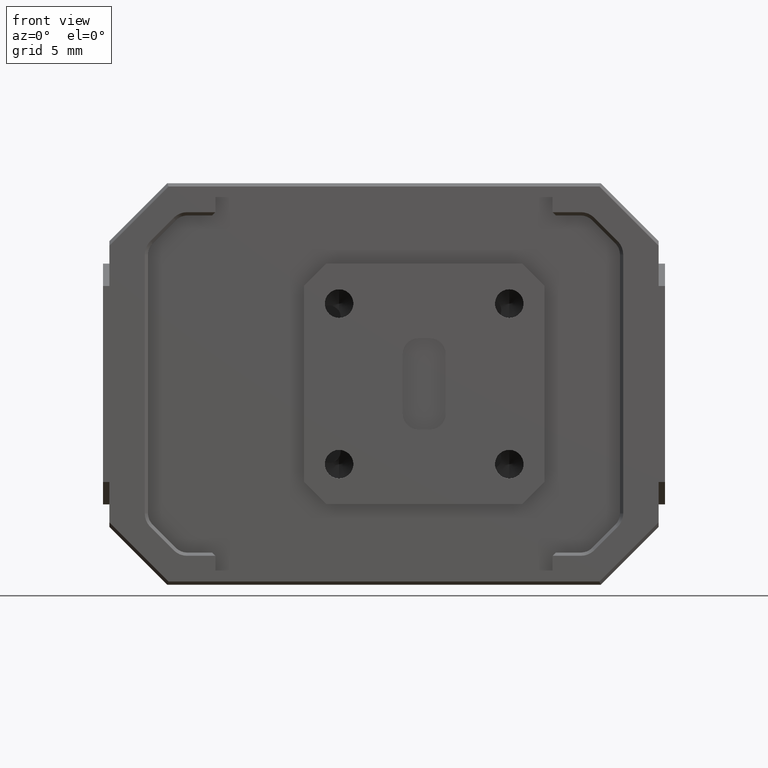
[diagram: clean part render]
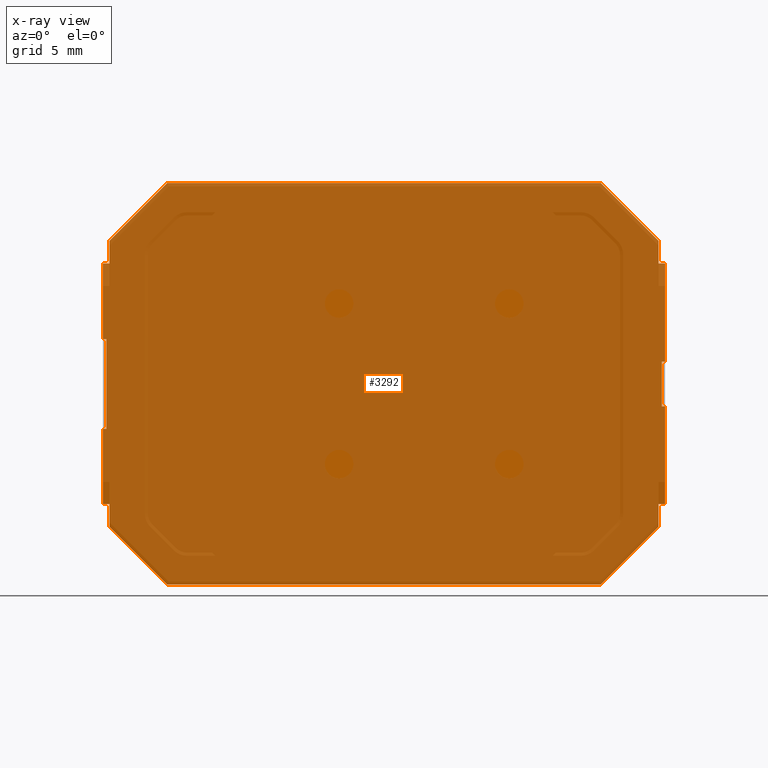
[diagram: x-ray — body ghosted, one internal face saturated and labeled with its STEP entity id]
A machine part, front view, then the same camera in x-ray: the body is ghosted and one INTERNAL B-rep face — a face not visible from any outside direction — is saturated and labeled: STEP entity #3292.
In plain terms, the highlighted planar face has unit normal (0, 1, 0).
Its self-contained STEP definition (entity closure, byte-faithful):
#88 = LINE ( 'NONE', #1535, #2466 ) ;
#144 = VERTEX_POINT ( 'NONE', #9385 ) ;
#421 = CARTESIAN_POINT ( 'NONE',  ( 0.000000000000000000, 0.000000000000000000, 0.000000000000000000 ) ) ;
#543 = VERTEX_POINT ( 'NONE', #2699 ) ;
#607 = EDGE_CURVE ( 'NONE', #2891, #1020, #5852, .T. ) ;
#648 = ORIENTED_EDGE ( 'NONE', *, *, #22525, .F. ) ;
#935 = CARTESIAN_POINT ( 'NONE',  ( 0.8750000000000007772, 0.000000000000000000, 0.6250000000000012212 ) ) ;
#1020 = VERTEX_POINT ( 'NONE', #16506 ) ;
#1477 = EDGE_CURVE ( 'NONE', #2705, #19434, #1617, .T. ) ;
#1502 = VECTOR ( 'NONE', #12886, 39.37007874015748143 ) ;
#1535 = CARTESIAN_POINT ( 'NONE',  ( 0.8750000000000007772, -0.000000000000000000, -0.6250000000000006661 ) ) ;
#1571 = DIRECTION ( 'NONE',  ( -1.000000000000000000, 0.000000000000000000, 0.000000000000000000 ) ) ;
#1617 = LINE ( 'NONE', #22690, #21747 ) ;
#1821 = EDGE_CURVE ( 'NONE', #8327, #144, #25546, .T. ) ;
#1888 = DIRECTION ( 'NONE',  ( 0.7071067811865460184, -0.000000000000000000, 0.7071067811865489050 ) ) ;
#1915 = LINE ( 'NONE', #27135, #20199 ) ;
#2265 = EDGE_CURVE ( 'NONE', #19488, #2705, #10805, .T. ) ;
#2448 = CARTESIAN_POINT ( 'NONE',  ( 0.8550000000000013145, -0.000000000000000000, -0.4449999999999986744 ) ) ;
#2466 = VECTOR ( 'NONE', #6603, 39.37007874015748143 ) ;
#2600 = CARTESIAN_POINT ( 'NONE',  ( 0.000000000000000000, 0.000000000000000000, 0.1400000000000005962 ) ) ;
#2640 = FACE_OUTER_BOUND ( 'NONE', #15104, .T. ) ;
#2699 = CARTESIAN_POINT ( 'NONE',  ( 0.6750000000000004885, -0.000000000000000000, -0.6250000000000006661 ) ) ;
#2705 = VERTEX_POINT ( 'NONE', #3646 ) ;
#2791 = CARTESIAN_POINT ( 'NONE',  ( 0.000000000000000000, 0.000000000000000000, -0.3750000000000008327 ) ) ;
#2885 = VECTOR ( 'NONE', #26090, 39.37007874015748143 ) ;
#2891 = VERTEX_POINT ( 'NONE', #18754 ) ;
#2985 = CARTESIAN_POINT ( 'NONE',  ( 0.8750000000000013323, -1.365923996832131609E-16, -0.3750000000000008327 ) ) ;
#3065 = VERTEX_POINT ( 'NONE', #16248 ) ;
#3188 = CARTESIAN_POINT ( 'NONE',  ( 0.8750000000000007772, 0.000000000000000000, 0.6250000000000012212 ) ) ;
#3220 = EDGE_CURVE ( 'NONE', #18710, #24517, #4307, .T. ) ;
#3292 = ADVANCED_FACE ( 'NONE', ( #2640 ), #19415, .F. ) ;
#3432 = VECTOR ( 'NONE', #9208, 39.37007874015748854 ) ;
#3646 = CARTESIAN_POINT ( 'NONE',  ( 0.8650000000000034328, 0.000000000000000000, -0.06999999999999978462 ) ) ;
#3680 = DIRECTION ( 'NONE',  ( -0.000000000000000000, -0.000000000000000000, 1.000000000000000000 ) ) ;
#3802 = CARTESIAN_POINT ( 'NONE',  ( -0.8550000000000013145, 0.000000000000000000, 0.000000000000000000 ) ) ;
#3810 = ORIENTED_EDGE ( 'NONE', *, *, #15761, .T. ) ;
#3815 = LINE ( 'NONE', #14905, #15770 ) ;
#4073 = CARTESIAN_POINT ( 'NONE',  ( -0.6749999999999999334, 0.000000000000000000, -0.6250000000000006661 ) ) ;
#4278 = VECTOR ( 'NONE', #21367, 39.37007874015748143 ) ;
#4307 = LINE ( 'NONE', #23312, #26771 ) ;
#4432 = CARTESIAN_POINT ( 'NONE',  ( 0.8550000000000013145, 0.000000000000000000, 0.000000000000000000 ) ) ;
#4733 = ORIENTED_EDGE ( 'NONE', *, *, #9231, .T. ) ;
#5176 = CARTESIAN_POINT ( 'NONE',  ( 0.8750000000000007772, 0.000000000000000000, 0.07000000000000046463 ) ) ;
#5228 = DIRECTION ( 'NONE',  ( 0.000000000000000000, 0.000000000000000000, 1.000000000000000000 ) ) ;
#5290 = CARTESIAN_POINT ( 'NONE',  ( 0.8550000000000013145, 0.000000000000000000, 0.4450000000000002842 ) ) ;
#5512 = AXIS2_PLACEMENT_3D ( 'NONE', #421, #11094, #17332 ) ;
#5523 = LINE ( 'NONE', #3188, #26840 ) ;
#5852 = LINE ( 'NONE', #8070, #25292 ) ;
#5963 = DIRECTION ( 'NONE',  ( -0.7071067811865467956, -0.000000000000000000, -0.7071067811865482389 ) ) ;
#6038 = LINE ( 'NONE', #16313, #17130 ) ;
#6128 = VERTEX_POINT ( 'NONE', #11201 ) ;
#6556 = ORIENTED_EDGE ( 'NONE', *, *, #22885, .T. ) ;
#6603 = DIRECTION ( 'NONE',  ( 1.000000000000000000, 0.000000000000000000, 0.000000000000000000 ) ) ;
#6723 = VERTEX_POINT ( 'NONE', #4073 ) ;
#6729 = ORIENTED_EDGE ( 'NONE', *, *, #2265, .T. ) ;
#6750 = ORIENTED_EDGE ( 'NONE', *, *, #24438, .F. ) ;
#6984 = DIRECTION ( 'NONE',  ( -1.000000000000000000, 0.000000000000000000, 0.000000000000000000 ) ) ;
#7093 = VECTOR ( 'NONE', #1888, 39.37007874015748854 ) ;
#7167 = DIRECTION ( 'NONE',  ( 1.000000000000000000, 0.000000000000000000, 0.000000000000000000 ) ) ;
#7346 = VERTEX_POINT ( 'NONE', #10949 ) ;
#7546 = VERTEX_POINT ( 'NONE', #8286 ) ;
#7676 = ORIENTED_EDGE ( 'NONE', *, *, #15926, .F. ) ;
#7702 = VERTEX_POINT ( 'NONE', #2448 ) ;
#7742 = VERTEX_POINT ( 'NONE', #21434 ) ;
#8070 = CARTESIAN_POINT ( 'NONE',  ( 0.000000000000000000, 0.000000000000000000, -0.1399999999999999023 ) ) ;
#8157 = CARTESIAN_POINT ( 'NONE',  ( 0.8650000000000034328, 0.000000000000000000, 0.07000000000000046463 ) ) ;
#8276 = DIRECTION ( 'NONE',  ( 0.000000000000000000, 0.000000000000000000, 1.000000000000000000 ) ) ;
#8286 = CARTESIAN_POINT ( 'NONE',  ( -0.8650000000000037659, 0.000000000000000000, 0.1400000000000005962 ) ) ;
#8327 = VERTEX_POINT ( 'NONE', #8486 ) ;
#8486 = CARTESIAN_POINT ( 'NONE',  ( -0.8750000000000013323, -1.365923996832131609E-16, 0.3750000000000005551 ) ) ;
#8689 = EDGE_CURVE ( 'NONE', #6723, #543, #88, .T. ) ;
#8917 = CARTESIAN_POINT ( 'NONE',  ( 0.6749999999999999334, 0.000000000000000000, 0.6250000000000012212 ) ) ;
#8924 = ORIENTED_EDGE ( 'NONE', *, *, #23966, .F. ) ;
#9208 = DIRECTION ( 'NONE',  ( 0.7071067811865494601, -0.000000000000000000, -0.7071067811865455743 ) ) ;
#9231 = EDGE_CURVE ( 'NONE', #7546, #2891, #3815, .T. ) ;
#9385 = CARTESIAN_POINT ( 'NONE',  ( -0.8750000000000009992, 0.000000000000000000, 0.1400000000000005962 ) ) ;
#9386 = DIRECTION ( 'NONE',  ( -1.000000000000000000, 0.000000000000000000, 0.000000000000000000 ) ) ;
#10361 = LINE ( 'NONE', #14945, #16588 ) ;
#10805 = LINE ( 'NONE', #25508, #1502 ) ;
#10881 = ORIENTED_EDGE ( 'NONE', *, *, #15185, .F. ) ;
#10949 = CARTESIAN_POINT ( 'NONE',  ( -0.8750000000000013323, -1.365923996832131609E-16, -0.3750000000000008327 ) ) ;
#10954 = LINE ( 'NONE', #4432, #27238 ) ;
#11094 = DIRECTION ( 'NONE',  ( 0.000000000000000000, 1.000000000000000000, 0.000000000000000000 ) ) ;
#11120 = CARTESIAN_POINT ( 'NONE',  ( -0.8750000000000009992, 0.000000000000000000, 0.6250000000000012212 ) ) ;
#11201 = CARTESIAN_POINT ( 'NONE',  ( 0.8550000000000013145, -1.365923996832131609E-16, -0.3750000000000008327 ) ) ;
#11433 = LINE ( 'NONE', #20010, #3432 ) ;
#11772 = VECTOR ( 'NONE', #9386, 39.37007874015748143 ) ;
#11809 = VECTOR ( 'NONE', #8276, 39.37007874015748143 ) ;
#11970 = CARTESIAN_POINT ( 'NONE',  ( 0.8750000000000007772, 0.000000000000000000, 0.4250000000000008771 ) ) ;
#12427 = LINE ( 'NONE', #20878, #7093 ) ;
#12727 = EDGE_CURVE ( 'NONE', #543, #7702, #12427, .T. ) ;
#12819 = DIRECTION ( 'NONE',  ( 0.000000000000000000, 0.000000000000000000, -1.000000000000000000 ) ) ;
#12842 = ORIENTED_EDGE ( 'NONE', *, *, #19794, .T. ) ;
#12886 = DIRECTION ( 'NONE',  ( -1.000000000000000000, 0.000000000000000000, 0.000000000000000000 ) ) ;
#13123 = LINE ( 'NONE', #2600, #11772 ) ;
#13204 = CARTESIAN_POINT ( 'NONE',  ( -0.8550000000000013145, 0.000000000000000000, 0.000000000000000000 ) ) ;
#13345 = ORIENTED_EDGE ( 'NONE', *, *, #16324, .T. ) ;
#13346 = ORIENTED_EDGE ( 'NONE', *, *, #3220, .T. ) ;
#13415 = CARTESIAN_POINT ( 'NONE',  ( -0.000000000000000000, 0.000000000000000000, -0.3750000000000008327 ) ) ;
#13593 = ORIENTED_EDGE ( 'NONE', *, *, #22547, .F. ) ;
#13778 = LINE ( 'NONE', #11970, #21043 ) ;
#13785 = ORIENTED_EDGE ( 'NONE', *, *, #20196, .F. ) ;
#14173 = VERTEX_POINT ( 'NONE', #5290 ) ;
#14378 = CARTESIAN_POINT ( 'NONE',  ( 0.8750000000000007772, 0.000000000000000000, 0.6250000000000012212 ) ) ;
#14881 = EDGE_CURVE ( 'NONE', #15386, #20326, #10361, .T. ) ;
#14905 = CARTESIAN_POINT ( 'NONE',  ( -0.8650000000000009903, 0.000000000000000000, 0.1400000000000005962 ) ) ;
#14945 = CARTESIAN_POINT ( 'NONE',  ( 0.000000000000000000, 0.000000000000000000, 0.3750000000000005551 ) ) ;
#15036 = EDGE_CURVE ( 'NONE', #14173, #18646, #13778, .T. ) ;
#15104 = EDGE_LOOP ( 'NONE', ( #21998, #7676, #21605, #22390, #8924, #15947, #3810, #13346, #13785, #19273, #24622, #6750, #4733, #16302, #13345, #6556, #10881, #24035, #23796, #22540, #648, #13593, #12842, #6729 ) ) ;
#15185 = EDGE_CURVE ( 'NONE', #7742, #3065, #17358, .T. ) ;
#15386 = VERTEX_POINT ( 'NONE', #21939 ) ;
#15761 = EDGE_CURVE ( 'NONE', #18646, #18710, #5523, .T. ) ;
#15770 = VECTOR ( 'NONE', #12819, 39.37007874015748143 ) ;
#15926 = EDGE_CURVE ( 'NONE', #22100, #19434, #1915, .T. ) ;
#15947 = ORIENTED_EDGE ( 'NONE', *, *, #15036, .T. ) ;
#16248 = CARTESIAN_POINT ( 'NONE',  ( -0.8550000000000013145, -1.365923996832131609E-16, -0.3750000000000008327 ) ) ;
#16302 = ORIENTED_EDGE ( 'NONE', *, *, #607, .T. ) ;
#16313 = CARTESIAN_POINT ( 'NONE',  ( -0.8750000000000009992, 0.000000000000000000, 0.6250000000000012212 ) ) ;
#16324 = EDGE_CURVE ( 'NONE', #1020, #7346, #6038, .T. ) ;
#16506 = CARTESIAN_POINT ( 'NONE',  ( -0.8750000000000009992, 0.000000000000000000, -0.1399999999999999023 ) ) ;
#16588 = VECTOR ( 'NONE', #25615, 39.37007874015748143 ) ;
#16661 = VECTOR ( 'NONE', #5228, 39.37007874015748143 ) ;
#17030 = CARTESIAN_POINT ( 'NONE',  ( 0.8750000000000007772, -0.000000000000000000, -0.06999999999999978462 ) ) ;
#17130 = VECTOR ( 'NONE', #18388, 39.37007874015748143 ) ;
#17196 = DIRECTION ( 'NONE',  ( 0.000000000000000000, 0.000000000000000000, -1.000000000000000000 ) ) ;
#17332 = DIRECTION ( 'NONE',  ( -0.000000000000000000, 0.000000000000000000, -1.000000000000000000 ) ) ;
#17358 = LINE ( 'NONE', #13204, #26793 ) ;
#17428 = VERTEX_POINT ( 'NONE', #19581 ) ;
#17482 = DIRECTION ( 'NONE',  ( 0.000000000000000000, 0.000000000000000000, -1.000000000000000000 ) ) ;
#17526 = LINE ( 'NONE', #25992, #20693 ) ;
#17759 = LINE ( 'NONE', #2791, #2885 ) ;
#18388 = DIRECTION ( 'NONE',  ( 0.000000000000000000, 0.000000000000000000, -1.000000000000000000 ) ) ;
#18646 = VERTEX_POINT ( 'NONE', #8917 ) ;
#18710 = VERTEX_POINT ( 'NONE', #21951 ) ;
#18754 = CARTESIAN_POINT ( 'NONE',  ( -0.8650000000000037659, 0.000000000000000000, -0.1399999999999999023 ) ) ;
#19273 = ORIENTED_EDGE ( 'NONE', *, *, #25731, .T. ) ;
#19415 = PLANE ( 'NONE',  #5512 ) ;
#19434 = VERTEX_POINT ( 'NONE', #8157 ) ;
#19443 = DIRECTION ( 'NONE',  ( 0.000000000000000000, 0.000000000000000000, 1.000000000000000000 ) ) ;
#19488 = VERTEX_POINT ( 'NONE', #17030 ) ;
#19581 = CARTESIAN_POINT ( 'NONE',  ( -0.8550000000000013145, -1.365923996832131609E-16, 0.3750000000000005551 ) ) ;
#19639 = CARTESIAN_POINT ( 'NONE',  ( -0.8550000000000013145, 0.000000000000000000, 0.4449999999999998401 ) ) ;
#19794 = EDGE_CURVE ( 'NONE', #26927, #19488, #27262, .T. ) ;
#19923 = LINE ( 'NONE', #935, #16661 ) ;
#20010 = CARTESIAN_POINT ( 'NONE',  ( -0.8750000000000009992, 0.000000000000000000, -0.4250000000000001554 ) ) ;
#20117 = LINE ( 'NONE', #21781, #21810 ) ;
#20196 = EDGE_CURVE ( 'NONE', #17428, #24517, #20725, .T. ) ;
#20199 = VECTOR ( 'NONE', #27284, 39.37007874015748143 ) ;
#20326 = VERTEX_POINT ( 'NONE', #26208 ) ;
#20693 = VECTOR ( 'NONE', #6984, 39.37007874015748143 ) ;
#20725 = LINE ( 'NONE', #3802, #4278 ) ;
#20878 = CARTESIAN_POINT ( 'NONE',  ( 0.6750000000000004885, -0.000000000000000000, -0.6250000000000006661 ) ) ;
#21043 = VECTOR ( 'NONE', #26797, 39.37007874015748143 ) ;
#21367 = DIRECTION ( 'NONE',  ( 0.000000000000000000, 0.000000000000000000, 1.000000000000000000 ) ) ;
#21434 = CARTESIAN_POINT ( 'NONE',  ( -0.8550000000000013145, 0.000000000000000000, -0.4449999999999998401 ) ) ;
#21605 = ORIENTED_EDGE ( 'NONE', *, *, #24551, .T. ) ;
#21747 = VECTOR ( 'NONE', #3680, 39.37007874015748143 ) ;
#21781 = CARTESIAN_POINT ( 'NONE',  ( 0.8550000000000013145, 0.000000000000000000, 0.000000000000000000 ) ) ;
#21810 = VECTOR ( 'NONE', #17482, 39.37007874015748143 ) ;
#21939 = CARTESIAN_POINT ( 'NONE',  ( 0.8550000000000013145, -1.365923996832131609E-16, 0.3750000000000005551 ) ) ;
#21951 = CARTESIAN_POINT ( 'NONE',  ( -0.6750000000000007105, 0.000000000000000000, 0.6250000000000012212 ) ) ;
#21998 = ORIENTED_EDGE ( 'NONE', *, *, #1477, .T. ) ;
#22042 = LINE ( 'NONE', #13415, #26307 ) ;
#22100 = VERTEX_POINT ( 'NONE', #5176 ) ;
#22101 = EDGE_CURVE ( 'NONE', #7742, #6723, #11433, .T. ) ;
#22390 = ORIENTED_EDGE ( 'NONE', *, *, #14881, .F. ) ;
#22525 = EDGE_CURVE ( 'NONE', #6128, #7702, #20117, .T. ) ;
#22540 = ORIENTED_EDGE ( 'NONE', *, *, #12727, .T. ) ;
#22547 = EDGE_CURVE ( 'NONE', #26927, #6128, #17759, .T. ) ;
#22690 = CARTESIAN_POINT ( 'NONE',  ( 0.8650000000000007683, 0.000000000000000000, 0.07000000000000046463 ) ) ;
#22885 = EDGE_CURVE ( 'NONE', #7346, #3065, #22042, .T. ) ;
#23312 = CARTESIAN_POINT ( 'NONE',  ( -0.6750000000000007105, 0.000000000000000000, 0.6250000000000012212 ) ) ;
#23473 = DIRECTION ( 'NONE',  ( 0.000000000000000000, 0.000000000000000000, -1.000000000000000000 ) ) ;
#23796 = ORIENTED_EDGE ( 'NONE', *, *, #8689, .T. ) ;
#23966 = EDGE_CURVE ( 'NONE', #14173, #15386, #10954, .T. ) ;
#24035 = ORIENTED_EDGE ( 'NONE', *, *, #22101, .T. ) ;
#24400 = DIRECTION ( 'NONE',  ( -1.000000000000000000, 0.000000000000000000, 0.000000000000000000 ) ) ;
#24438 = EDGE_CURVE ( 'NONE', #7546, #144, #13123, .T. ) ;
#24517 = VERTEX_POINT ( 'NONE', #19639 ) ;
#24551 = EDGE_CURVE ( 'NONE', #22100, #20326, #19923, .T. ) ;
#24622 = ORIENTED_EDGE ( 'NONE', *, *, #1821, .T. ) ;
#25292 = VECTOR ( 'NONE', #1571, 39.37007874015748143 ) ;
#25508 = CARTESIAN_POINT ( 'NONE',  ( 0.000000000000000000, 0.000000000000000000, -0.06999999999999978462 ) ) ;
#25546 = LINE ( 'NONE', #11120, #25820 ) ;
#25615 = DIRECTION ( 'NONE',  ( 1.000000000000000000, 0.000000000000000000, 0.000000000000000000 ) ) ;
#25731 = EDGE_CURVE ( 'NONE', #17428, #8327, #17526, .T. ) ;
#25820 = VECTOR ( 'NONE', #23473, 39.37007874015748143 ) ;
#25992 = CARTESIAN_POINT ( 'NONE',  ( 0.000000000000000000, 0.000000000000000000, 0.3750000000000005551 ) ) ;
#26090 = DIRECTION ( 'NONE',  ( -1.000000000000000000, 0.000000000000000000, 0.000000000000000000 ) ) ;
#26208 = CARTESIAN_POINT ( 'NONE',  ( 0.8750000000000013323, -1.365923996832131609E-16, 0.3750000000000005551 ) ) ;
#26307 = VECTOR ( 'NONE', #7167, 39.37007874015748143 ) ;
#26771 = VECTOR ( 'NONE', #5963, 39.37007874015748143 ) ;
#26793 = VECTOR ( 'NONE', #19443, 39.37007874015748143 ) ;
#26797 = DIRECTION ( 'NONE',  ( -0.7071067811865492381, 0.000000000000000000, 0.7071067811865459074 ) ) ;
#26840 = VECTOR ( 'NONE', #24400, 39.37007874015748143 ) ;
#26927 = VERTEX_POINT ( 'NONE', #2985 ) ;
#27135 = CARTESIAN_POINT ( 'NONE',  ( 0.000000000000000000, 0.000000000000000000, 0.07000000000000046463 ) ) ;
#27238 = VECTOR ( 'NONE', #17196, 39.37007874015748143 ) ;
#27262 = LINE ( 'NONE', #14378, #11809 ) ;
#27284 = DIRECTION ( 'NONE',  ( -1.000000000000000000, 0.000000000000000000, 0.000000000000000000 ) ) ;